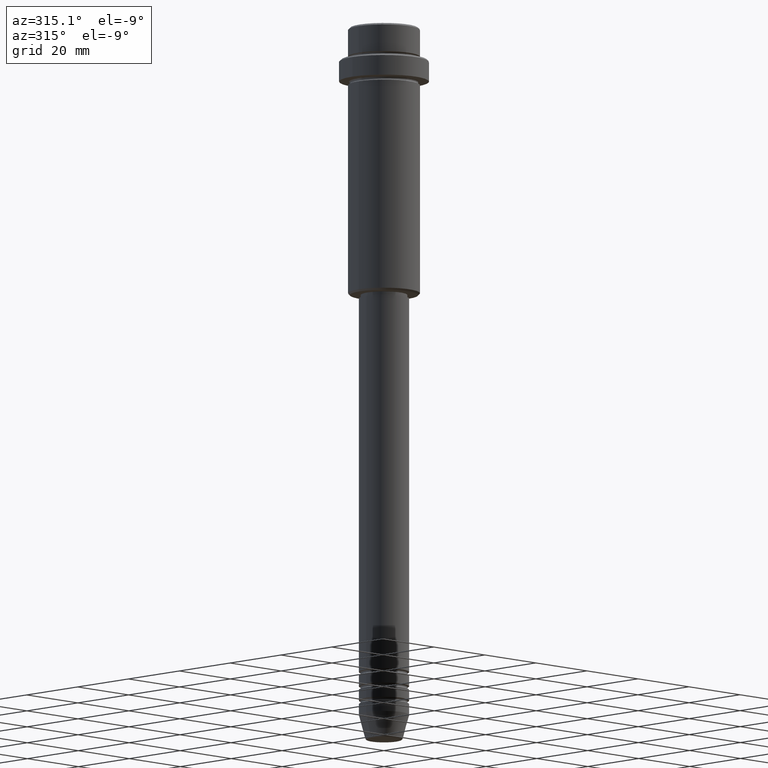
[diagram: clean part render]
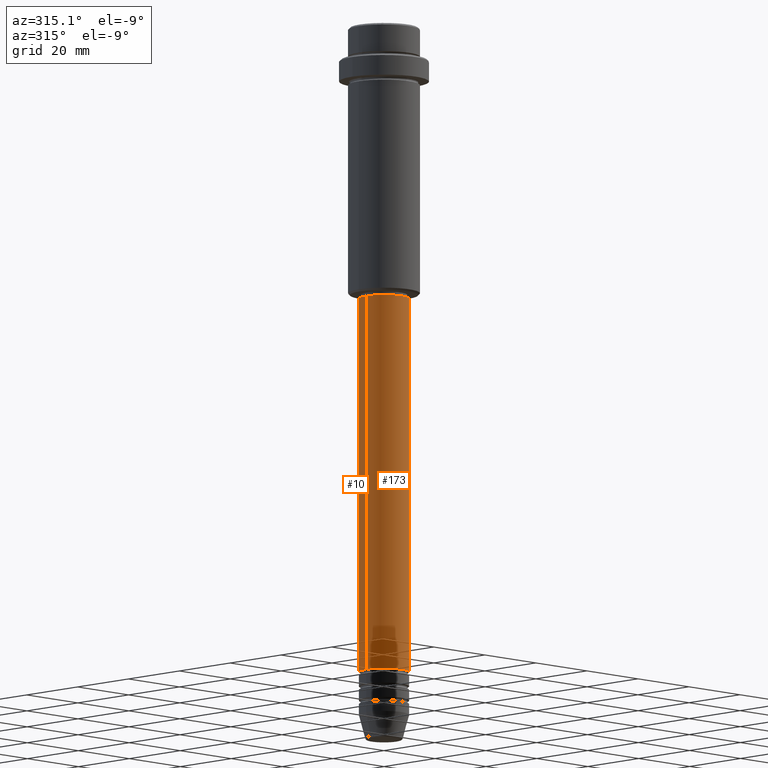
[diagram: same view with one multi-face feature highlighted, each face labeled with its STEP entity id]
A machine part, auxiliary view. The highlighted faces form ONE feature: a constant-radius fillet chain: 2 tangent blend faces with common blend radius 7 mm. The faces share edges in the B-rep.
Their STEP definitions:
[1] entity #173 (Cylinder):
#1 = ORIENTED_EDGE ( 'NONE', *, *, #814, .T. ) ;
#23 = ORIENTED_EDGE ( 'NONE', *, *, #273, .F. ) ;
#81 = DIRECTION ( 'NONE',  ( 1.000000000000000000, 0.000000000000000000, 0.000000000000000000 ) ) ;
#133 = VECTOR ( 'NONE', #569, 1000.000000000000000 ) ;
#173 = ADVANCED_FACE ( 'NONE', ( #1253 ), #1283, .T. ) ;
#174 = CARTESIAN_POINT ( 'NONE',  ( 7.000000000000000000, 0.000000000000000000, -180.9999999999998863 ) ) ;
#176 = DIRECTION ( 'NONE',  ( -0.000000000000000000, -0.000000000000000000, 1.000000000000000000 ) ) ;
#273 = EDGE_CURVE ( 'NONE', #568, #1202, #528, .T. ) ;
#294 = AXIS2_PLACEMENT_3D ( 'NONE', #1049, #402, #309 ) ;
#309 = DIRECTION ( 'NONE',  ( 1.000000000000000000, 0.000000000000000000, 0.000000000000000000 ) ) ;
#327 = CARTESIAN_POINT ( 'NONE',  ( 7.000000000000000000, 0.000000000000000000, -76.00000000000001421 ) ) ;
#337 = AXIS2_PLACEMENT_3D ( 'NONE', #1167, #1064, #634 ) ;
#402 = DIRECTION ( 'NONE',  ( -0.000000000000000000, -0.000000000000000000, 1.000000000000000000 ) ) ;
#439 = ORIENTED_EDGE ( 'NONE', *, *, #774, .F. ) ;
#462 = VERTEX_POINT ( 'NONE', #698 ) ;
#528 = CIRCLE ( 'NONE', #337, 7.000000000000000000 ) ;
#535 = CARTESIAN_POINT ( 'NONE',  ( 0.000000000000000000, 0.000000000000000000, 0.000000000000000000 ) ) ;
#541 = AXIS2_PLACEMENT_3D ( 'NONE', #535, #176, #81 ) ;
#560 = CARTESIAN_POINT ( 'NONE',  ( -7.000000000000000000, 8.572527594031473190E-16, 0.000000000000000000 ) ) ;
#568 = VERTEX_POINT ( 'NONE', #1172 ) ;
#569 = DIRECTION ( 'NONE',  ( -0.000000000000000000, -0.000000000000000000, 1.000000000000000000 ) ) ;
#634 = DIRECTION ( 'NONE',  ( 1.000000000000000000, 0.000000000000000000, 0.000000000000000000 ) ) ;
#660 = VERTEX_POINT ( 'NONE', #174 ) ;
#664 = VECTOR ( 'NONE', #788, 1000.000000000000000 ) ;
#672 = CARTESIAN_POINT ( 'NONE',  ( 7.000000000000000000, 0.000000000000000000, 0.000000000000000000 ) ) ;
#698 = CARTESIAN_POINT ( 'NONE',  ( -7.000000000000000000, 8.572527594031473190E-16, -180.9999999999998863 ) ) ;
#774 = EDGE_CURVE ( 'NONE', #462, #568, #1310, .T. ) ;
#788 = DIRECTION ( 'NONE',  ( -0.000000000000000000, -0.000000000000000000, 1.000000000000000000 ) ) ;
#814 = EDGE_CURVE ( 'NONE', #660, #1202, #1082, .T. ) ;
#840 = ORIENTED_EDGE ( 'NONE', *, *, #1117, .T. ) ;
#912 = CIRCLE ( 'NONE', #294, 7.000000000000000000 ) ;
#1049 = CARTESIAN_POINT ( 'NONE',  ( 0.000000000000000000, 0.000000000000000000, -180.9999999999998863 ) ) ;
#1064 = DIRECTION ( 'NONE',  ( -0.000000000000000000, -0.000000000000000000, 1.000000000000000000 ) ) ;
#1082 = LINE ( 'NONE', #672, #664 ) ;
#1117 = EDGE_CURVE ( 'NONE', #462, #660, #912, .T. ) ;
#1167 = CARTESIAN_POINT ( 'NONE',  ( 0.000000000000000000, 0.000000000000000000, -76.00000000000001421 ) ) ;
#1172 = CARTESIAN_POINT ( 'NONE',  ( -7.000000000000000000, 8.572527594031473190E-16, -76.00000000000001421 ) ) ;
#1202 = VERTEX_POINT ( 'NONE', #327 ) ;
#1253 = FACE_OUTER_BOUND ( 'NONE', #1349, .T. ) ;
#1283 = CYLINDRICAL_SURFACE ( 'NONE', #541, 7.000000000000000000 ) ;
#1310 = LINE ( 'NONE', #560, #133 ) ;
#1349 = EDGE_LOOP ( 'NONE', ( #439, #840, #1, #23 ) ) ;
[2] entity #10 (Cylinder):
#10 = ADVANCED_FACE ( 'NONE', ( #242 ), #1120, .T. ) ;
#26 = AXIS2_PLACEMENT_3D ( 'NONE', #358, #272, #281 ) ;
#72 = DIRECTION ( 'NONE',  ( -0.000000000000000000, -0.000000000000000000, 1.000000000000000000 ) ) ;
#124 = ORIENTED_EDGE ( 'NONE', *, *, #193, .F. ) ;
#133 = VECTOR ( 'NONE', #569, 1000.000000000000000 ) ;
#174 = CARTESIAN_POINT ( 'NONE',  ( 7.000000000000000000, 0.000000000000000000, -180.9999999999998863 ) ) ;
#193 = EDGE_CURVE ( 'NONE', #1202, #568, #982, .T. ) ;
#196 = AXIS2_PLACEMENT_3D ( 'NONE', #863, #72, #751 ) ;
#242 = FACE_OUTER_BOUND ( 'NONE', #1340, .T. ) ;
#272 = DIRECTION ( 'NONE',  ( -0.000000000000000000, -0.000000000000000000, 1.000000000000000000 ) ) ;
#281 = DIRECTION ( 'NONE',  ( 1.000000000000000000, 0.000000000000000000, 0.000000000000000000 ) ) ;
#327 = CARTESIAN_POINT ( 'NONE',  ( 7.000000000000000000, 0.000000000000000000, -76.00000000000001421 ) ) ;
#358 = CARTESIAN_POINT ( 'NONE',  ( 0.000000000000000000, 0.000000000000000000, 0.000000000000000000 ) ) ;
#379 = DIRECTION ( 'NONE',  ( 1.000000000000000000, 0.000000000000000000, 0.000000000000000000 ) ) ;
#462 = VERTEX_POINT ( 'NONE', #698 ) ;
#483 = AXIS2_PLACEMENT_3D ( 'NONE', #494, #1234, #379 ) ;
#494 = CARTESIAN_POINT ( 'NONE',  ( 0.000000000000000000, 0.000000000000000000, -180.9999999999998863 ) ) ;
#560 = CARTESIAN_POINT ( 'NONE',  ( -7.000000000000000000, 8.572527594031473190E-16, 0.000000000000000000 ) ) ;
#568 = VERTEX_POINT ( 'NONE', #1172 ) ;
#569 = DIRECTION ( 'NONE',  ( -0.000000000000000000, -0.000000000000000000, 1.000000000000000000 ) ) ;
#660 = VERTEX_POINT ( 'NONE', #174 ) ;
#664 = VECTOR ( 'NONE', #788, 1000.000000000000000 ) ;
#672 = CARTESIAN_POINT ( 'NONE',  ( 7.000000000000000000, 0.000000000000000000, 0.000000000000000000 ) ) ;
#689 = ORIENTED_EDGE ( 'NONE', *, *, #814, .F. ) ;
#698 = CARTESIAN_POINT ( 'NONE',  ( -7.000000000000000000, 8.572527594031473190E-16, -180.9999999999998863 ) ) ;
#701 = ORIENTED_EDGE ( 'NONE', *, *, #774, .T. ) ;
#751 = DIRECTION ( 'NONE',  ( 1.000000000000000000, 0.000000000000000000, 0.000000000000000000 ) ) ;
#774 = EDGE_CURVE ( 'NONE', #462, #568, #1310, .T. ) ;
#788 = DIRECTION ( 'NONE',  ( -0.000000000000000000, -0.000000000000000000, 1.000000000000000000 ) ) ;
#814 = EDGE_CURVE ( 'NONE', #660, #1202, #1082, .T. ) ;
#834 = ORIENTED_EDGE ( 'NONE', *, *, #1396, .T. ) ;
#863 = CARTESIAN_POINT ( 'NONE',  ( 0.000000000000000000, 0.000000000000000000, -76.00000000000001421 ) ) ;
#982 = CIRCLE ( 'NONE', #196, 7.000000000000000000 ) ;
#1082 = LINE ( 'NONE', #672, #664 ) ;
#1120 = CYLINDRICAL_SURFACE ( 'NONE', #26, 7.000000000000000000 ) ;
#1172 = CARTESIAN_POINT ( 'NONE',  ( -7.000000000000000000, 8.572527594031473190E-16, -76.00000000000001421 ) ) ;
#1202 = VERTEX_POINT ( 'NONE', #327 ) ;
#1234 = DIRECTION ( 'NONE',  ( -0.000000000000000000, -0.000000000000000000, 1.000000000000000000 ) ) ;
#1310 = LINE ( 'NONE', #560, #133 ) ;
#1340 = EDGE_LOOP ( 'NONE', ( #834, #701, #124, #689 ) ) ;
#1388 = CIRCLE ( 'NONE', #483, 7.000000000000000000 ) ;
#1396 = EDGE_CURVE ( 'NONE', #660, #462, #1388, .T. ) ;